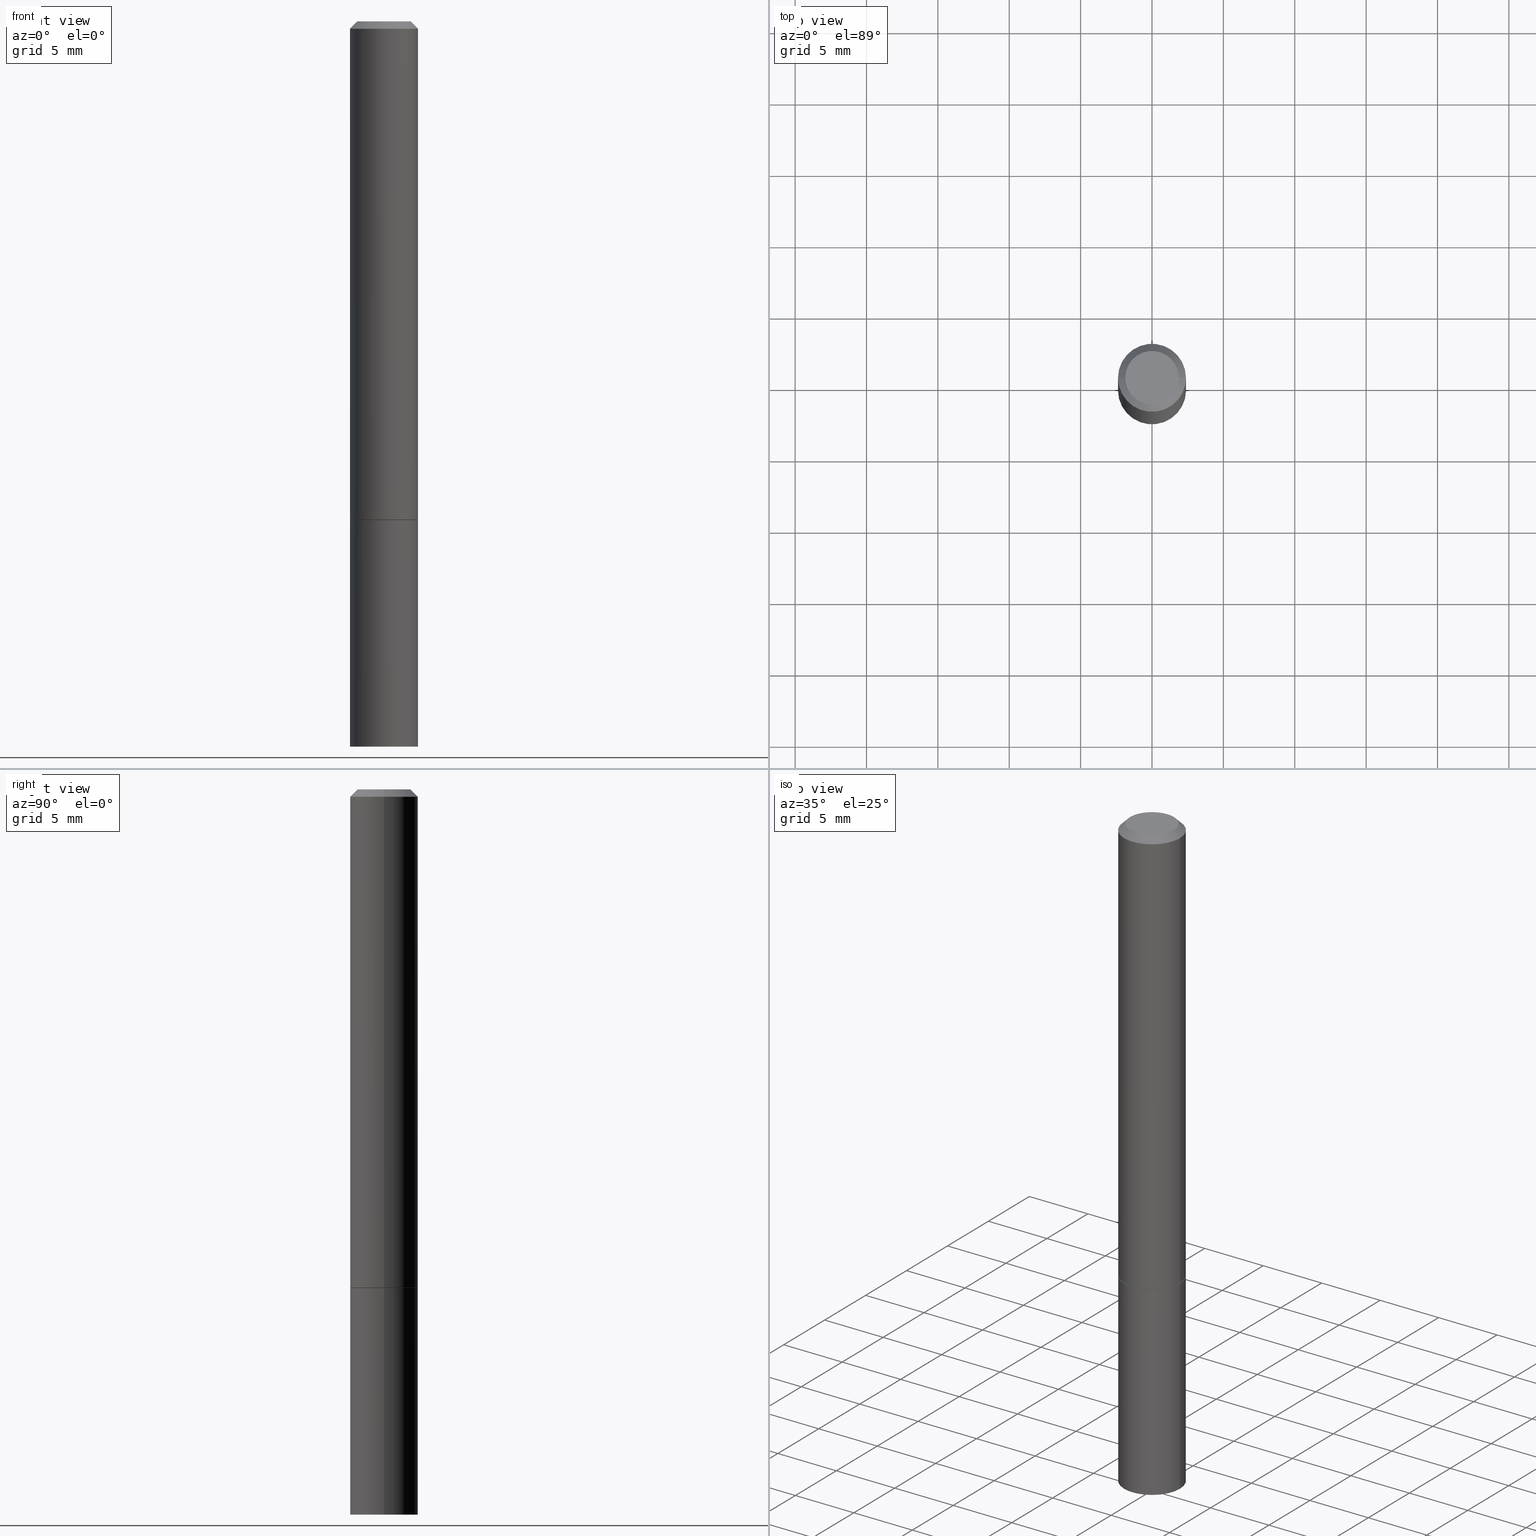
[diagram: canonical four-view strip — front | top / right | iso, engineering-drawing reading convention]
A machine part, canonical four-view strip (front | top / right | iso — engineering-drawing reading convention). The complete STEP part file that produces these views, byte-faithful:
ISO-10303-21;
HEADER;
FILE_DESCRIPTION (( 'STEP AP203' ),
    '1' );
FILE_NAME ('39023.STEP',
    '2023-03-21T20:44:02',
    ( '' ),
    ( '' ),
    'SwSTEP 2.0',
    'SolidWorks 2022',
    '' );
FILE_SCHEMA (( 'CONFIG_CONTROL_DESIGN' ));
ENDSEC;

DATA;
#1 = CARTESIAN_POINT ( 'NONE',  ( 0.000000000000000000, 0.000000000000000000, 0.000000000000000000 ) ) ;
#2 = AXIS2_PLACEMENT_3D ( 'NONE', #90, #218, #125 ) ;
#3 = LENGTH_MEASURE_WITH_UNIT ( LENGTH_MEASURE( 0.02539999999999999897 ), #229 );
#4 = LINE ( 'NONE', #122, #100 ) ;
#5 = EDGE_LOOP ( 'NONE', ( #28, #297 ) ) ;
#6 = CARTESIAN_POINT ( 'NONE',  ( -0.09375000000000001388, -1.767428678398575728E-15, -1.373999999999999888 ) ) ;
#7 = DIRECTION ( 'NONE',  ( -1.000000000000000000, 6.982962677686266711E-15, 0.000000000000000000 ) ) ;
#8 = EDGE_CURVE ( 'NONE', #51, #108, #191, .T. ) ;
#9 = DIRECTION ( 'NONE',  ( 1.000000000000000000, -6.982962677686261189E-15, 0.000000000000000000 ) ) ;
#10 = CONICAL_SURFACE ( 'NONE', #59, 0.09374999999999984734, 0.7853981633974471688 ) ;
#11 = CIRCLE ( 'NONE', #40, 0.07374999999999988509 ) ;
#12 = DIRECTION ( 'NONE',  ( -2.445468806185136597E-29, 3.491481338843145583E-15, 1.000000000000000000 ) ) ;
#13 = DIRECTION ( 'NONE',  ( 0.9986295347545742773, -7.033825938272001856E-15, -0.05233595624293820026 ) ) ;
#14 = DIRECTION ( 'NONE',  ( 1.000000000000000000, -6.982962677686265922E-15, 4.876176775795935793E-29 ) ) ;
#15 = PRODUCT ( '39023', '39023', '', ( #231 ) ) ;
#16 = LINE ( 'NONE', #165, #285 ) ;
#17 = PERSON_AND_ORGANIZATION ( #63, #206 ) ;
#18 = DATE_TIME_ROLE ( 'creation_date' ) ;
#19 = PRODUCT_RELATED_PRODUCT_CATEGORY ( 'detail', '', ( #15 ) ) ;
#20 = ORIENTED_EDGE ( 'NONE', *, *, #296, .F. ) ;
#21 = CALENDAR_DATE ( 2023, 21, 3 ) ;
#22 = ORIENTED_EDGE ( 'NONE', *, *, #116, .F. ) ;
#23 = VERTEX_POINT ( 'NONE', #129 ) ;
#24 = APPROVAL_DATE_TIME ( #176, #75 ) ;
#25 = ORIENTED_EDGE ( 'NONE', *, *, #252, .F. ) ;
#26 = PERSON_AND_ORGANIZATION ( #63, #206 ) ;
#27 = EDGE_CURVE ( 'NONE', #55, #344, #258, .T. ) ;
#28 = ORIENTED_EDGE ( 'NONE', *, *, #376, .T. ) ;
#29 = CARTESIAN_POINT ( 'NONE',  ( 3.362519608504561700E-29, -4.800786840909324141E-15, -1.374999999999999778 ) ) ;
#30 = VERTEX_POINT ( 'NONE', #318 ) ;
#31 = CC_DESIGN_PERSON_AND_ORGANIZATION_ASSIGNMENT ( #17, #270, ( #149 ) ) ;
#32 = VECTOR ( 'NONE', #70, 39.37007874015748143 ) ;
#33 = CARTESIAN_POINT ( 'NONE',  ( 0.07374999999999988509, -6.094815207017963170E-16, 3.931526600461599449E-30 ) ) ;
#34 = LOCAL_TIME ( 16, 44, 2.000000000000000000, #168 ) ;
#35 = DIRECTION ( 'NONE',  ( -2.438088387897960049E-29, 3.491481338843145188E-15, 1.000000000000000000 ) ) ;
#36 = CARTESIAN_POINT ( 'NONE',  ( 4.890937612370278413E-31, -6.982962677686297772E-17, -0.02000000000000002123 ) ) ;
#37 = CARTESIAN_POINT ( 'NONE',  ( -0.09374999999999984734, 5.848231242562234171E-16, -0.02000000000000002123 ) ) ;
#38 = DIRECTION ( 'NONE',  ( 1.000000000000000000, -6.982962677686261189E-15, 0.000000000000000000 ) ) ;
#39 = APPROVAL ( #104, 'UNSPECIFIED' ) ;
#40 = AXIS2_PLACEMENT_3D ( 'NONE', #223, #374, #256 ) ;
#41 = FACE_OUTER_BOUND ( 'NONE', #236, .T. ) ;
#42 = CARTESIAN_POINT ( 'NONE',  ( 3.362519608504562260E-29, -4.800786840909324930E-15, -1.375000000000000000 ) ) ;
#43 = PERSON_AND_ORGANIZATION_ROLE ( 'classification_officer' ) ;
#44 = DIRECTION ( 'NONE',  ( 1.000000000000000000, -6.982962677686262766E-15, 0.000000000000000000 ) ) ;
#45 = ADVANCED_FACE ( 'NONE', ( #41 ), #164, .T. ) ;
#46 = ORIENTED_EDGE ( 'NONE', *, *, #194, .F. ) ;
#47 = AXIS2_PLACEMENT_3D ( 'NONE', #317, #74, #38 ) ;
#48 = EDGE_LOOP ( 'NONE', ( #281, #382, #224, #271 ) ) ;
#49 = DIRECTION ( 'NONE',  ( 1.000000000000000000, 0.000000000000000000, 0.000000000000000000 ) ) ;
#50 = CARTESIAN_POINT ( 'NONE',  ( 0.000000000000000000, 0.000000000000000000, 0.000000000000000000 ) ) ;
#51 = VERTEX_POINT ( 'NONE', #102 ) ;
#52 = EDGE_CURVE ( 'NONE', #329, #269, #220, .T. ) ;
#53 = ORIENTED_EDGE ( 'NONE', *, *, #81, .T. ) ;
#54 = CARTESIAN_POINT ( 'NONE',  ( 0.000000000000000000, 0.000000000000000000, 0.000000000000000000 ) ) ;
#55 = VERTEX_POINT ( 'NONE', #87 ) ;
#56 = CARTESIAN_POINT ( 'NONE',  ( 3.362519608504561700E-29, -4.800786840909324141E-15, -1.374999999999999778 ) ) ;
#57 = ADVANCED_FACE ( 'NONE', ( #58 ), #333, .T. ) ;
#58 = FACE_OUTER_BOUND ( 'NONE', #358, .T. ) ;
#59 = AXIS2_PLACEMENT_3D ( 'NONE', #67, #199, #94 ) ;
#60 = APPROVAL_PERSON_ORGANIZATION ( #170, #103, #201 ) ;
#61 = DIRECTION ( 'NONE',  ( -2.445468806185136597E-29, 3.491481338843145583E-15, 1.000000000000000000 ) ) ;
#62 = CIRCLE ( 'NONE', #47, 0.09375000000000001388 ) ;
#63 = PERSON ( 'UNSPECIFIED', 'UNSPECIFIED', 'UNSPECIFIED', ('UNSPECIFIED'), ('UNSPECIFIED'), ('UNSPECIFIED') ) ;
#64 = EDGE_LOOP ( 'NONE', ( #101, #265, #148, #387 ) ) ;
#65 = DIRECTION ( 'NONE',  ( 1.000000000000000000, -6.982962677686266711E-15, 4.876176775795935793E-29 ) ) ;
#66 = ADVANCED_FACE ( 'NONE', ( #334 ), #308, .T. ) ;
#67 = CARTESIAN_POINT ( 'NONE',  ( 4.890937612370278413E-31, -6.982962677686297772E-17, -0.02000000000000002123 ) ) ;
#68 = AXIS2_PLACEMENT_3D ( 'NONE', #332, #12, #130 ) ;
#69 = AXIS2_PLACEMENT_3D ( 'NONE', #279, #126, #71 ) ;
#70 = DIRECTION ( 'NONE',  ( -2.445468806185136877E-29, 3.491481338843145188E-15, 1.000000000000000000 ) ) ;
#71 = DIRECTION ( 'NONE',  ( -1.000000000000000000, 6.982962677686265922E-15, -4.876176775795935793E-29 ) ) ;
#72 = FACE_OUTER_BOUND ( 'NONE', #214, .T. ) ;
#73 = EDGE_CURVE ( 'NONE', #82, #55, #113, .T. ) ;
#74 = DIRECTION ( 'NONE',  ( -2.445468806185136597E-29, 3.491481338843145583E-15, 1.000000000000000000 ) ) ;
#75 = APPROVAL ( #80, 'UNSPECIFIED' ) ;
#76 = CALENDAR_DATE ( 2023, 21, 3 ) ;
#77 = EDGE_LOOP ( 'NONE', ( #267, #261 ) ) ;
#78 = PERSON_AND_ORGANIZATION ( #63, #206 ) ;
#79 = AXIS2_PLACEMENT_3D ( 'NONE', #373, #345, #287 ) ;
#80 = APPROVAL_STATUS ( 'not_yet_approved' ) ;
#81 = EDGE_CURVE ( 'NONE', #269, #329, #371, .T. ) ;
#82 = VERTEX_POINT ( 'NONE', #311 ) ;
#83 = APPLICATION_PROTOCOL_DEFINITION ( 'international standard', 'config_control_design', 1994, #259 ) ;
#84 = VERTEX_POINT ( 'NONE', #33 ) ;
#85 = DIRECTION ( 'NONE',  ( 0.000000000000000000, 0.000000000000000000, 1.000000000000000000 ) ) ;
#86 = ORIENTED_EDGE ( 'NONE', *, *, #73, .F. ) ;
#87 = CARTESIAN_POINT ( 'NONE',  ( -0.09274999999999998523, -4.136459999143609611E-15, -1.374999999999999778 ) ) ;
#88 = ADVANCED_FACE ( 'NONE', ( #151 ), #156, .F. ) ;
#89 = ORIENTED_EDGE ( 'NONE', *, *, #379, .T. ) ;
#90 = CARTESIAN_POINT ( 'NONE',  ( 1.011572219194682015E-27, -1.444257034592898076E-13, -41.36516551084969251 ) ) ;
#91 = FACE_OUTER_BOUND ( 'NONE', #48, .T. ) ;
#92 = LINE ( 'NONE', #339, #216 ) ;
#93 = AXIS2_PLACEMENT_3D ( 'NONE', #99, #324, #44 ) ;
#94 = DIRECTION ( 'NONE',  ( -1.000000000000000000, 6.982962677686266711E-15, 0.000000000000000000 ) ) ;
#95 = CARTESIAN_POINT ( 'NONE',  ( -0.09274999999999998523, -4.141758453491831225E-15, -1.374999999999999778 ) ) ;
#96 = LINE ( 'NONE', #163, #304 ) ;
#97 = ORIENTED_EDGE ( 'NONE', *, *, #326, .T. ) ;
#98 = ADVANCED_FACE ( 'NONE', ( #91 ), #121, .T. ) ;
#99 = CARTESIAN_POINT ( 'NONE',  ( 3.362519608504561700E-29, -4.800786840909324141E-15, -1.374999999999999778 ) ) ;
#100 = VECTOR ( 'NONE', #282, 39.37007874015748143 ) ;
#101 = ORIENTED_EDGE ( 'NONE', *, *, #326, .F. ) ;
#102 = CARTESIAN_POINT ( 'NONE',  ( 4.878836351073985601E-29, -6.965931546940130516E-15, -1.995086770692215294 ) ) ;
#103 = APPROVAL ( #239, 'UNSPECIFIED' ) ;
#104 = APPROVAL_STATUS ( 'not_yet_approved' ) ;
#105 = CONICAL_SURFACE ( 'NONE', #293, 0.09374999999999984734, 0.7853981633974471688 ) ;
#106 = ORIENTED_EDGE ( 'NONE', *, *, #27, .F. ) ;
#107 = LOCAL_TIME ( 16, 44, 2.000000000000000000, #381 ) ;
#108 = VERTEX_POINT ( 'NONE', #315 ) ;
#109 = DATE_TIME_ROLE ( 'classification_date' ) ;
#110 = ORIENTED_EDGE ( 'NONE', *, *, #335, .T. ) ;
#111 = SHAPE_DEFINITION_REPRESENTATION ( #208, #228 ) ;
#112 = CC_DESIGN_PERSON_AND_ORGANIZATION_ASSIGNMENT ( #294, #174, ( #154 ) ) ;
#113 = CIRCLE ( 'NONE', #277, 0.09274999999999998523 ) ;
#114 = CC_DESIGN_APPROVAL ( #103, ( #149 ) ) ;
#115 = CARTESIAN_POINT ( 'NONE',  ( -0.09375000000000001388, -5.225740944522714123E-15, -1.375000000000000000 ) ) ;
#116 = EDGE_CURVE ( 'NONE', #248, #269, #161, .T. ) ;
#117 = DIRECTION ( 'NONE',  ( -2.445468806185136597E-29, 3.491481338843145583E-15, 1.000000000000000000 ) ) ;
#118 = AXIS2_PLACEMENT_3D ( 'NONE', #56, #61, #180 ) ;
#119 = DIRECTION ( 'NONE',  ( -2.445468806185136597E-29, 3.491481338843145583E-15, 1.000000000000000000 ) ) ;
#120 = APPLICATION_CONTEXT ( 'configuration controlled 3d designs of mechanical parts and assemblies' ) ;
#121 = CYLINDRICAL_SURFACE ( 'NONE', #360, 0.09375000000000001388 ) ;
#122 = CARTESIAN_POINT ( 'NONE',  ( -0.09374999999999984734, 5.848231242562234171E-16, -0.02000000000000002123 ) ) ;
#123 =( CONVERSION_BASED_UNIT ( 'INCH', #3 ) LENGTH_UNIT ( ) NAMED_UNIT ( #202 ) );
#124 = ORIENTED_EDGE ( 'NONE', *, *, #379, .F. ) ;
#125 = DIRECTION ( 'NONE',  ( -1.000000000000000000, 6.982962677686266711E-15, 0.000000000000000000 ) ) ;
#126 = DIRECTION ( 'NONE',  ( 2.438088387897960049E-29, -3.491481338843145188E-15, -1.000000000000000000 ) ) ;
#127 = VECTOR ( 'NONE', #155, 39.37007874015748143 ) ;
#128 = AXIS2_PLACEMENT_3D ( 'NONE', #50, #85, #49 ) ;
#129 = CARTESIAN_POINT ( 'NONE',  ( 0.09374999999999984734, -7.626134364977371460E-15, -2.000000000000000000 ) ) ;
#130 = DIRECTION ( 'NONE',  ( 1.000000000000000000, -6.982962677686262766E-15, 0.000000000000000000 ) ) ;
#131 = PLANE ( 'NONE',  #69 ) ;
#132 = DIRECTION ( 'NONE',  ( -2.445468806185136877E-29, 3.491481338843145188E-15, 1.000000000000000000 ) ) ;
#133 = ADVANCED_FACE ( 'NONE', ( #341 ), #353, .F. ) ;
#134 = CC_DESIGN_DATE_AND_TIME_ASSIGNMENT ( #380, #109, ( #390 ) ) ;
#135 = APPLICATION_PROTOCOL_DEFINITION ( 'international standard', 'config_control_design', 1994, #120 ) ;
#136 = AXIS2_PLACEMENT_3D ( 'NONE', #242, #359, #150 ) ;
#137 =( GEOMETRIC_REPRESENTATION_CONTEXT ( 3 ) GLOBAL_UNCERTAINTY_ASSIGNED_CONTEXT ( ( #200 ) ) GLOBAL_UNIT_ASSIGNED_CONTEXT ( ( #123, #385, #356 ) ) REPRESENTATION_CONTEXT ( 'NONE', 'WORKASPACE' ) );
#138 = EDGE_CURVE ( 'NONE', #30, #329, #4, .T. ) ;
#139 = EDGE_LOOP ( 'NONE', ( #140, #226, #301, #22 ) ) ;
#140 = ORIENTED_EDGE ( 'NONE', *, *, #362, .T. ) ;
#141 = EDGE_LOOP ( 'NONE', ( #177, #365, #351 ) ) ;
#142 = ORIENTED_EDGE ( 'NONE', *, *, #8, .T. ) ;
#143 = COORDINATED_UNIVERSAL_TIME_OFFSET ( 5, 0, .BEHIND. ) ;
#144 = CARTESIAN_POINT ( 'NONE',  ( 0.000000000000000000, 0.000000000000000000, 0.000000000000000000 ) ) ;
#145 = CIRCLE ( 'NONE', #309, 0.09375000000000001388 ) ;
#146 = ORIENTED_EDGE ( 'NONE', *, *, #241, .F. ) ;
#147 = APPROVAL_ROLE ( '' ) ;
#148 = ORIENTED_EDGE ( 'NONE', *, *, #138, .T. ) ;
#149 = PRODUCT_DEFINITION ( 'UNKNOWN', '', #154, #257 ) ;
#150 = DIRECTION ( 'NONE',  ( 1.000000000000000000, -6.982962677686266711E-15, 0.000000000000000000 ) ) ;
#151 = FACE_OUTER_BOUND ( 'NONE', #5, .T. ) ;
#152 = DIRECTION ( 'NONE',  ( 1.000000000000000000, -6.982962677686265922E-15, 4.876176775795935232E-29 ) ) ;
#153 = CIRCLE ( 'NONE', #321, 0.07374999999999988509 ) ;
#154 = PRODUCT_DEFINITION_FORMATION_WITH_SPECIFIED_SOURCE ( 'ANY', '', #15, .NOT_KNOWN. ) ;
#155 = DIRECTION ( 'NONE',  ( -2.445468806185136877E-29, 3.491481338843145188E-15, 1.000000000000000000 ) ) ;
#156 = PLANE ( 'NONE',  #337 ) ;
#157 = CARTESIAN_POINT ( 'NONE',  ( 0.09374999999999984734, -7.130013140679430017E-16, -0.02000000000000002123 ) ) ;
#158 = DIRECTION ( 'NONE',  ( 2.445468806185136597E-29, -3.491481338843145583E-15, -1.000000000000000000 ) ) ;
#159 = CARTESIAN_POINT ( 'NONE',  ( 3.362519608504562260E-29, -4.800786840909324930E-15, -1.375000000000000000 ) ) ;
#160 = DIRECTION ( 'NONE',  ( -0.9986295347545742773, 6.790662755453662155E-15, -0.05233595624293820026 ) ) ;
#161 = LINE ( 'NONE', #284, #213 ) ;
#162 = CONICAL_SURFACE ( 'NONE', #93, 0.09274999999999998523, 0.7853981633975591903 ) ;
#163 = CARTESIAN_POINT ( 'NONE',  ( 0.09274999999999998523, -5.448456629264724842E-15, -1.374999999999999778 ) ) ;
#164 = CYLINDRICAL_SURFACE ( 'NONE', #303, 0.09375000000000001388 ) ;
#165 = CARTESIAN_POINT ( 'NONE',  ( 0.09374999999999984734, -7.130013140679430017E-16, -0.02000000000000002123 ) ) ;
#166 = CARTESIAN_POINT ( 'NONE',  ( 0.000000000000000000, 0.000000000000000000, 0.000000000000000000 ) ) ;
#167 = CC_DESIGN_PERSON_AND_ORGANIZATION_ASSIGNMENT ( #26, #43, ( #390 ) ) ;
#168 = COORDINATED_UNIVERSAL_TIME_OFFSET ( 5, 0, .BEHIND. ) ;
#169 = MANIFOLD_SOLID_BREP ( 'Body-Move/Copy2[1]', #292 ) ;
#170 = PERSON_AND_ORGANIZATION ( #63, #206 ) ;
#171 = CONICAL_SURFACE ( 'NONE', #2, 751.2258538476485228, 1.518436449235072372 ) ;
#172 = CC_DESIGN_APPROVAL ( #75, ( #390 ) ) ;
#173 = ORIENTED_EDGE ( 'NONE', *, *, #310, .F. ) ;
#174 = PERSON_AND_ORGANIZATION_ROLE ( 'design_supplier' ) ;
#175 = ORIENTED_EDGE ( 'NONE', *, *, #138, .F. ) ;
#176 = DATE_AND_TIME ( #291, #246 ) ;
#177 = ORIENTED_EDGE ( 'NONE', *, *, #8, .F. ) ;
#178 = CALENDAR_DATE ( 2023, 21, 3 ) ;
#179 = CIRCLE ( 'NONE', #68, 0.09274999999999998523 ) ;
#180 = DIRECTION ( 'NONE',  ( 1.000000000000000000, -6.982962677686262766E-15, 0.000000000000000000 ) ) ;
#181 = ORIENTED_EDGE ( 'NONE', *, *, #372, .F. ) ;
#182 = DIRECTION ( 'NONE',  ( -2.445468806185136597E-29, 3.491481338843145583E-15, 1.000000000000000000 ) ) ;
#183 = ADVANCED_FACE ( 'NONE', ( #319 ), #275, .T. ) ;
#184 = CIRCLE ( 'NONE', #79, 0.09375000000000001388 ) ;
#185 = APPROVAL_PERSON_ORGANIZATION ( #233, #39, #235 ) ;
#186 = DIRECTION ( 'NONE',  ( 1.000000000000000000, -6.982962677686262766E-15, 0.000000000000000000 ) ) ;
#187 = CARTESIAN_POINT ( 'NONE',  ( 0.09375000000000001388, -5.451948110603568638E-15, -1.373999999999999888 ) ) ;
#188 = CC_DESIGN_PERSON_AND_ORGANIZATION_ASSIGNMENT ( #300, #354, ( #154 ) ) ;
#189 = DIRECTION ( 'NONE',  ( 0.7071067811865466846, -7.319954787623252890E-15, -0.7071067811865483499 ) ) ;
#190 = PLANE ( 'NONE',  #268 ) ;
#191 = LINE ( 'NONE', #348, #195 ) ;
#192 = DIRECTION ( 'NONE',  ( 2.438088387897960049E-29, -3.491481338843145188E-15, -1.000000000000000000 ) ) ;
#193 = CARTESIAN_POINT ( 'NONE',  ( 1.233176954751590042E-19, -6.965808229244704146E-15, -1.995086770692215294 ) ) ;
#194 = EDGE_CURVE ( 'NONE', #23, #108, #245, .T. ) ;
#195 = VECTOR ( 'NONE', #160, 39.37007874015748854 ) ;
#196 = AXIS2_PLACEMENT_3D ( 'NONE', #307, #273, #389 ) ;
#197 = DIRECTION ( 'NONE',  ( 0.7071067811866259545, -2.468850131083078659E-15, 0.7071067811864690800 ) ) ;
#198 = EDGE_LOOP ( 'NONE', ( #181, #142, #46 ) ) ;
#199 = DIRECTION ( 'NONE',  ( 2.445468806185136597E-29, -3.491481338843145583E-15, -1.000000000000000000 ) ) ;
#200 = UNCERTAINTY_MEASURE_WITH_UNIT (LENGTH_MEASURE( 1.000000000000000082E-05 ), #123, 'distance_accuracy_value', 'NONE');
#201 = APPROVAL_ROLE ( '' ) ;
#202 = DIMENSIONAL_EXPONENTS ( 1.000000000000000000, 0.000000000000000000, 0.000000000000000000, 0.000000000000000000, 0.000000000000000000, 0.000000000000000000, 0.000000000000000000 ) ;
#203 = CC_DESIGN_DATE_AND_TIME_ASSIGNMENT ( #302, #18, ( #149 ) ) ;
#204 = ORIENTED_EDGE ( 'NONE', *, *, #310, .T. ) ;
#205 = AXIS2_PLACEMENT_3D ( 'NONE', #253, #225, #9 ) ;
#206 = ORGANIZATION ( 'UNSPECIFIED', 'UNSPECIFIED', '' ) ;
#207 = APPROVAL_DATE_TIME ( #325, #39 ) ;
#208 = PRODUCT_DEFINITION_SHAPE ( 'NONE', 'NONE',  #149 ) ;
#209 = EDGE_LOOP ( 'NONE', ( #106, #355, #89, #173 ) ) ;
#210 = DATE_AND_TIME ( #352, #107 ) ;
#211 = ORIENTED_EDGE ( 'NONE', *, *, #27, .T. ) ;
#212 = EDGE_LOOP ( 'NONE', ( #375, #97, #53, #175 ) ) ;
#213 = VECTOR ( 'NONE', #219, 39.37007874015748143 ) ;
#214 = EDGE_LOOP ( 'NONE', ( #86, #146 ) ) ;
#215 = DIRECTION ( 'NONE',  ( -2.445468806185136597E-29, 3.491481338843145583E-15, 1.000000000000000000 ) ) ;
#216 = VECTOR ( 'NONE', #132, 39.37007874015748143 ) ;
#217 = LINE ( 'NONE', #343, #127 ) ;
#218 = DIRECTION ( 'NONE',  ( 2.445468806185136597E-29, -3.491481338843145583E-15, -1.000000000000000000 ) ) ;
#219 = DIRECTION ( 'NONE',  ( -2.445468806185136877E-29, 3.491481338843145188E-15, 1.000000000000000000 ) ) ;
#220 = CIRCLE ( 'NONE', #136, 0.09374999999999984734 ) ;
#221 = VECTOR ( 'NONE', #13, 39.37007874015748854 ) ;
#222 = CC_DESIGN_PERSON_AND_ORGANIZATION_ASSIGNMENT ( #78, #264, ( #15 ) ) ;
#223 = CARTESIAN_POINT ( 'NONE',  ( 0.000000000000000000, 0.000000000000000000, 0.000000000000000000 ) ) ;
#224 = ORIENTED_EDGE ( 'NONE', *, *, #376, .F. ) ;
#225 = DIRECTION ( 'NONE',  ( -2.445468806185136597E-29, 3.491481338843145583E-15, 1.000000000000000000 ) ) ;
#226 = ORIENTED_EDGE ( 'NONE', *, *, #252, .T. ) ;
#227 = DIRECTION ( 'NONE',  ( 1.000000000000000000, -6.982962677686265922E-15, 4.876176775795935793E-29 ) ) ;
#228 = ADVANCED_BREP_SHAPE_REPRESENTATION ( '39023', ( #169, #305, #128 ), #137 ) ;
#229 =( LENGTH_UNIT ( ) NAMED_UNIT ( * ) SI_UNIT ( $, .METRE. ) );
#230 = CC_DESIGN_APPROVAL ( #39, ( #154 ) ) ;
#231 = MECHANICAL_CONTEXT ( 'NONE', #259, 'mechanical' ) ;
#232 = ORIENTED_EDGE ( 'NONE', *, *, #362, .F. ) ;
#233 = PERSON_AND_ORGANIZATION ( #63, #206 ) ;
#234 = ADVANCED_FACE ( 'NONE', ( #340 ), #105, .T. ) ;
#235 = APPROVAL_ROLE ( '' ) ;
#236 = EDGE_LOOP ( 'NONE', ( #20, #299, #110, #306 ) ) ;
#237 = DIRECTION ( 'NONE',  ( -2.445468806185136597E-29, 3.491481338843145583E-15, 1.000000000000000000 ) ) ;
#238 = EDGE_CURVE ( 'NONE', #84, #30, #153, .T. ) ;
#239 = APPROVAL_STATUS ( 'not_yet_approved' ) ;
#240 = AXIS2_PLACEMENT_3D ( 'NONE', #1, #117, #65 ) ;
#241 = EDGE_CURVE ( 'NONE', #55, #82, #179, .T. ) ;
#242 = CARTESIAN_POINT ( 'NONE',  ( 4.890937612370278413E-31, -6.982962677686297772E-17, -0.02000000000000002123 ) ) ;
#243 = ADVANCED_FACE ( 'NONE', ( #289 ), #162, .T. ) ;
#244 = VECTOR ( 'NONE', #346, 39.37007874015748143 ) ;
#245 = CIRCLE ( 'NONE', #349, 0.09375000000000001388 ) ;
#246 = LOCAL_TIME ( 16, 44, 2.000000000000000000, #143 ) ;
#247 = CARTESIAN_POINT ( 'NONE',  ( 0.000000000000000000, 0.000000000000000000, 0.000000000000000000 ) ) ;
#248 = VERTEX_POINT ( 'NONE', #187 ) ;
#249 = LINE ( 'NONE', #193, #221 ) ;
#250 = VERTEX_POINT ( 'NONE', #115 ) ;
#251 = DIRECTION ( 'NONE',  ( 1.000000000000000000, -6.982962677686265922E-15, 4.876176775795935793E-29 ) ) ;
#252 = EDGE_CURVE ( 'NONE', #344, #329, #217, .T. ) ;
#253 = CARTESIAN_POINT ( 'NONE',  ( 4.890937612370273194E-29, -6.982962677686291165E-15, -2.000000000000000000 ) ) ;
#254 = VERTEX_POINT ( 'NONE', #316 ) ;
#255 = AXIS2_PLACEMENT_3D ( 'NONE', #54, #215, #336 ) ;
#256 = DIRECTION ( 'NONE',  ( 1.000000000000000000, -6.982962677686265922E-15, 4.876176775795935232E-29 ) ) ;
#257 = DESIGN_CONTEXT ( 'detailed design', #120, 'design' ) ;
#258 = LINE ( 'NONE', #95, #244 ) ;
#259 = APPLICATION_CONTEXT ( 'configuration controlled 3d designs of mechanical parts and assemblies' ) ;
#260 = FACE_OUTER_BOUND ( 'NONE', #64, .T. ) ;
#261 = ORIENTED_EDGE ( 'NONE', *, *, #238, .T. ) ;
#262 = ADVANCED_FACE ( 'NONE', ( #347 ), #171, .F. ) ;
#263 = COORDINATED_UNIVERSAL_TIME_OFFSET ( 5, 0, .BEHIND. ) ;
#264 = PERSON_AND_ORGANIZATION_ROLE ( 'design_owner' ) ;
#265 = ORIENTED_EDGE ( 'NONE', *, *, #357, .F. ) ;
#266 = ORIENTED_EDGE ( 'NONE', *, *, #116, .T. ) ;
#267 = ORIENTED_EDGE ( 'NONE', *, *, #357, .T. ) ;
#268 = AXIS2_PLACEMENT_3D ( 'NONE', #159, #35, #227 ) ;
#269 = VERTEX_POINT ( 'NONE', #157 ) ;
#270 = PERSON_AND_ORGANIZATION_ROLE ( 'creator' ) ;
#271 = ORIENTED_EDGE ( 'NONE', *, *, #335, .F. ) ;
#272 = EDGE_CURVE ( 'NONE', #108, #23, #327, .T. ) ;
#273 = DIRECTION ( 'NONE',  ( -2.445468806185136597E-29, 3.491481338843145583E-15, 1.000000000000000000 ) ) ;
#274 = AXIS2_PLACEMENT_3D ( 'NONE', #295, #323, #7 ) ;
#275 = CYLINDRICAL_SURFACE ( 'NONE', #240, 0.09374999999999991673 ) ;
#276 = CARTESIAN_POINT ( 'NONE',  ( 6.546527510331211293E-16, 0.09374999999999521216, -1.375000000000000222 ) ) ;
#277 = AXIS2_PLACEMENT_3D ( 'NONE', #29, #182, #186 ) ;
#278 = DIRECTION ( 'NONE',  ( -2.445468806185136597E-29, 3.491481338843145583E-15, 1.000000000000000000 ) ) ;
#279 = CARTESIAN_POINT ( 'NONE',  ( 5.149934974793613022E-16, 0.07374999999999988509, -2.574967487396815385E-16 ) ) ;
#280 = DIRECTION ( 'NONE',  ( -1.000000000000000000, 6.982962677686266711E-15, 0.000000000000000000 ) ) ;
#281 = ORIENTED_EDGE ( 'NONE', *, *, #194, .T. ) ;
#282 = DIRECTION ( 'NONE',  ( -0.7071067811865466846, 2.468850131082247989E-15, -0.7071067811865483499 ) ) ;
#283 = CARTESIAN_POINT ( 'NONE',  ( 3.360074139698377778E-29, -4.797295359570481134E-15, -1.373999999999999888 ) ) ;
#284 = CARTESIAN_POINT ( 'NONE',  ( 0.09374999999999991673, -6.546527510330869125E-16, 4.571415727308685602E-30 ) ) ;
#285 = VECTOR ( 'NONE', #189, 39.37007874015748143 ) ;
#286 = LOCAL_TIME ( 16, 44, 2.000000000000000000, #378 ) ;
#287 = DIRECTION ( 'NONE',  ( 1.000000000000000000, -6.982962677686261189E-15, 0.000000000000000000 ) ) ;
#288 = DIRECTION ( 'NONE',  ( -2.445468806185136597E-29, 3.491481338843145583E-15, 1.000000000000000000 ) ) ;
#289 = FACE_OUTER_BOUND ( 'NONE', #331, .T. ) ;
#290 = DIRECTION ( 'NONE',  ( 1.000000000000000000, -6.982962677686261189E-15, 0.000000000000000000 ) ) ;
#291 = CALENDAR_DATE ( 2023, 21, 3 ) ;
#292 = CLOSED_SHELL ( 'NONE', ( #98, #262, #133, #45, #88 ) ) ;
#293 = AXIS2_PLACEMENT_3D ( 'NONE', #36, #158, #280 ) ;
#294 = PERSON_AND_ORGANIZATION ( #63, #206 ) ;
#295 = CARTESIAN_POINT ( 'NONE',  ( 1.011572219194682015E-27, -1.444257034592898076E-13, -41.36516551084969251 ) ) ;
#296 = EDGE_CURVE ( 'NONE', #108, #250, #369, .T. ) ;
#297 = ORIENTED_EDGE ( 'NONE', *, *, #388, .T. ) ;
#298 = PERSON_AND_ORGANIZATION ( #63, #206 ) ;
#299 = ORIENTED_EDGE ( 'NONE', *, *, #272, .T. ) ;
#300 = PERSON_AND_ORGANIZATION ( #63, #206 ) ;
#301 = ORIENTED_EDGE ( 'NONE', *, *, #81, .F. ) ;
#302 = DATE_AND_TIME ( #76, #286 ) ;
#303 = AXIS2_PLACEMENT_3D ( 'NONE', #166, #288, #14 ) ;
#304 = VECTOR ( 'NONE', #197, 39.37007874015748143 ) ;
#305 = MANIFOLD_SOLID_BREP ( 'Body-Move/Copy2[2]', #320 ) ;
#306 = ORIENTED_EDGE ( 'NONE', *, *, #388, .F. ) ;
#307 = CARTESIAN_POINT ( 'NONE',  ( 4.890937612370278413E-31, -6.982962677686297772E-17, -0.02000000000000002123 ) ) ;
#308 = CONICAL_SURFACE ( 'NONE', #118, 0.09274999999999998523, 0.7853981633975591903 ) ;
#309 = AXIS2_PLACEMENT_3D ( 'NONE', #283, #377, #313 ) ;
#310 = EDGE_CURVE ( 'NONE', #344, #248, #184, .T. ) ;
#311 = CARTESIAN_POINT ( 'NONE',  ( 0.09274999999999998523, -5.448456629264724842E-15, -1.374999999999999778 ) ) ;
#312 = ADVANCED_FACE ( 'NONE', ( #260 ), #10, .T. ) ;
#313 = DIRECTION ( 'NONE',  ( 1.000000000000000000, -6.982962677686261189E-15, 0.000000000000000000 ) ) ;
#314 = DIRECTION ( 'NONE',  ( 1.000000000000000000, -6.982962677686261189E-15, 0.000000000000000000 ) ) ;
#315 = CARTESIAN_POINT ( 'NONE',  ( -0.09374999999999984734, -6.328309926653205239E-15, -2.000000000000000000 ) ) ;
#316 = CARTESIAN_POINT ( 'NONE',  ( 0.09375000000000001388, -5.455439591942412434E-15, -1.375000000000000000 ) ) ;
#317 = CARTESIAN_POINT ( 'NONE',  ( 3.362519608504562260E-29, -4.800786840909324930E-15, -1.375000000000000000 ) ) ;
#318 = CARTESIAN_POINT ( 'NONE',  ( -0.07374999999999988509, 5.499083108677923596E-16, -3.723527850031187664E-30 ) ) ;
#319 = FACE_OUTER_BOUND ( 'NONE', #139, .T. ) ;
#320 = CLOSED_SHELL ( 'NONE', ( #243, #183, #234, #312, #57, #66, #361, #368 ) ) ;
#321 = AXIS2_PLACEMENT_3D ( 'NONE', #144, #237, #152 ) ;
#322 = FACE_OUTER_BOUND ( 'NONE', #77, .T. ) ;
#323 = DIRECTION ( 'NONE',  ( 2.445468806185136597E-29, -3.491481338843145583E-15, -1.000000000000000000 ) ) ;
#324 = DIRECTION ( 'NONE',  ( -2.445468806185136597E-29, 3.491481338843145583E-15, 1.000000000000000000 ) ) ;
#325 = DATE_AND_TIME ( #178, #328 ) ;
#326 = EDGE_CURVE ( 'NONE', #84, #269, #16, .T. ) ;
#327 = CIRCLE ( 'NONE', #205, 0.09375000000000001388 ) ;
#328 = LOCAL_TIME ( 16, 44, 2.000000000000000000, #263 ) ;
#329 = VERTEX_POINT ( 'NONE', #37 ) ;
#330 = APPROVAL_DATE_TIME ( #210, #103 ) ;
#331 = EDGE_LOOP ( 'NONE', ( #384, #211, #232, #124 ) ) ;
#332 = CARTESIAN_POINT ( 'NONE',  ( 3.362519608504561700E-29, -4.800786840909324141E-15, -1.374999999999999778 ) ) ;
#333 = CYLINDRICAL_SURFACE ( 'NONE', #255, 0.09374999999999991673 ) ;
#334 = FACE_OUTER_BOUND ( 'NONE', #209, .T. ) ;
#335 = EDGE_CURVE ( 'NONE', #23, #254, #92, .T. ) ;
#336 = DIRECTION ( 'NONE',  ( 1.000000000000000000, -6.982962677686266711E-15, 4.876176775795935793E-29 ) ) ;
#337 = AXIS2_PLACEMENT_3D ( 'NONE', #276, #192, #367 ) ;
#338 = CC_DESIGN_SECURITY_CLASSIFICATION ( #390, ( #154 ) ) ;
#339 = CARTESIAN_POINT ( 'NONE',  ( 0.09375000000000001388, -6.546527510330875041E-16, 4.571415727308690506E-30 ) ) ;
#340 = FACE_OUTER_BOUND ( 'NONE', #212, .T. ) ;
#341 = FACE_OUTER_BOUND ( 'NONE', #198, .T. ) ;
#342 = APPROVAL_PERSON_ORGANIZATION ( #298, #75, #147 ) ;
#343 = CARTESIAN_POINT ( 'NONE',  ( -0.09374999999999991673, 6.661338147750933326E-16, -4.611501647113969791E-30 ) ) ;
#344 = VERTEX_POINT ( 'NONE', #6 ) ;
#345 = DIRECTION ( 'NONE',  ( -2.445468806185136597E-29, 3.491481338843145583E-15, 1.000000000000000000 ) ) ;
#346 = DIRECTION ( 'NONE',  ( -0.7071067811866259545, 7.493145998870638150E-15, 0.7071067811864690800 ) ) ;
#347 = FACE_OUTER_BOUND ( 'NONE', #141, .T. ) ;
#348 = CARTESIAN_POINT ( 'NONE',  ( -1.233176953775805598E-19, -6.965808229244704146E-15, -1.995086770692215294 ) ) ;
#349 = AXIS2_PLACEMENT_3D ( 'NONE', #364, #119, #314 ) ;
#350 = DIRECTION ( 'NONE',  ( -2.445468806185136597E-29, 3.491481338843145583E-15, 1.000000000000000000 ) ) ;
#351 = ORIENTED_EDGE ( 'NONE', *, *, #272, .F. ) ;
#352 = CALENDAR_DATE ( 2023, 21, 3 ) ;
#353 = CONICAL_SURFACE ( 'NONE', #274, 751.2258538476485228, 1.518436449235072372 ) ;
#354 = PERSON_AND_ORGANIZATION_ROLE ( 'creator' ) ;
#355 = ORIENTED_EDGE ( 'NONE', *, *, #241, .T. ) ;
#356 =( NAMED_UNIT ( * ) SI_UNIT ( $, .STERADIAN. ) SOLID_ANGLE_UNIT ( ) );
#357 = EDGE_CURVE ( 'NONE', #30, #84, #11, .T. ) ;
#358 = EDGE_LOOP ( 'NONE', ( #25, #204, #266, #370 ) ) ;
#359 = DIRECTION ( 'NONE',  ( -2.445468806185136597E-29, 3.491481338843145583E-15, 1.000000000000000000 ) ) ;
#360 = AXIS2_PLACEMENT_3D ( 'NONE', #247, #278, #251 ) ;
#361 = ADVANCED_FACE ( 'NONE', ( #72 ), #190, .F. ) ;
#362 = EDGE_CURVE ( 'NONE', #248, #344, #145, .T. ) ;
#363 = AXIS2_PLACEMENT_3D ( 'NONE', #42, #350, #290 ) ;
#364 = CARTESIAN_POINT ( 'NONE',  ( 4.890937612370273194E-29, -6.982962677686291165E-15, -2.000000000000000000 ) ) ;
#365 = ORIENTED_EDGE ( 'NONE', *, *, #372, .T. ) ;
#366 = CARTESIAN_POINT ( 'NONE',  ( -0.09375000000000001388, 6.661338147750940229E-16, -4.611501647113973995E-30 ) ) ;
#367 = DIRECTION ( 'NONE',  ( -1.000000000000000000, 6.982962677686265922E-15, -4.876176775795935793E-29 ) ) ;
#368 = ADVANCED_FACE ( 'NONE', ( #322 ), #131, .F. ) ;
#369 = LINE ( 'NONE', #366, #32 ) ;
#370 = ORIENTED_EDGE ( 'NONE', *, *, #52, .F. ) ;
#371 = CIRCLE ( 'NONE', #196, 0.09374999999999984734 ) ;
#372 = EDGE_CURVE ( 'NONE', #51, #23, #249, .T. ) ;
#373 = CARTESIAN_POINT ( 'NONE',  ( 3.360074139698377778E-29, -4.797295359570481134E-15, -1.373999999999999888 ) ) ;
#374 = DIRECTION ( 'NONE',  ( -2.445468806185136597E-29, 3.491481338843145583E-15, 1.000000000000000000 ) ) ;
#375 = ORIENTED_EDGE ( 'NONE', *, *, #238, .F. ) ;
#376 = EDGE_CURVE ( 'NONE', #254, #250, #62, .T. ) ;
#377 = DIRECTION ( 'NONE',  ( -2.445468806185136597E-29, 3.491481338843145583E-15, 1.000000000000000000 ) ) ;
#378 = COORDINATED_UNIVERSAL_TIME_OFFSET ( 5, 0, .BEHIND. ) ;
#379 = EDGE_CURVE ( 'NONE', #82, #248, #96, .T. ) ;
#380 = DATE_AND_TIME ( #21, #34 ) ;
#381 = COORDINATED_UNIVERSAL_TIME_OFFSET ( 5, 0, .BEHIND. ) ;
#382 = ORIENTED_EDGE ( 'NONE', *, *, #296, .T. ) ;
#383 = CIRCLE ( 'NONE', #363, 0.09375000000000001388 ) ;
#384 = ORIENTED_EDGE ( 'NONE', *, *, #73, .T. ) ;
#385 =( NAMED_UNIT ( * ) PLANE_ANGLE_UNIT ( ) SI_UNIT ( $, .RADIAN. ) );
#386 = SECURITY_CLASSIFICATION_LEVEL ( 'unclassified' ) ;
#387 = ORIENTED_EDGE ( 'NONE', *, *, #52, .T. ) ;
#388 = EDGE_CURVE ( 'NONE', #250, #254, #383, .T. ) ;
#389 = DIRECTION ( 'NONE',  ( 1.000000000000000000, -6.982962677686266711E-15, 0.000000000000000000 ) ) ;
#390 = SECURITY_CLASSIFICATION ( '', '', #386 ) ;
ENDSEC;
END-ISO-10303-21;
